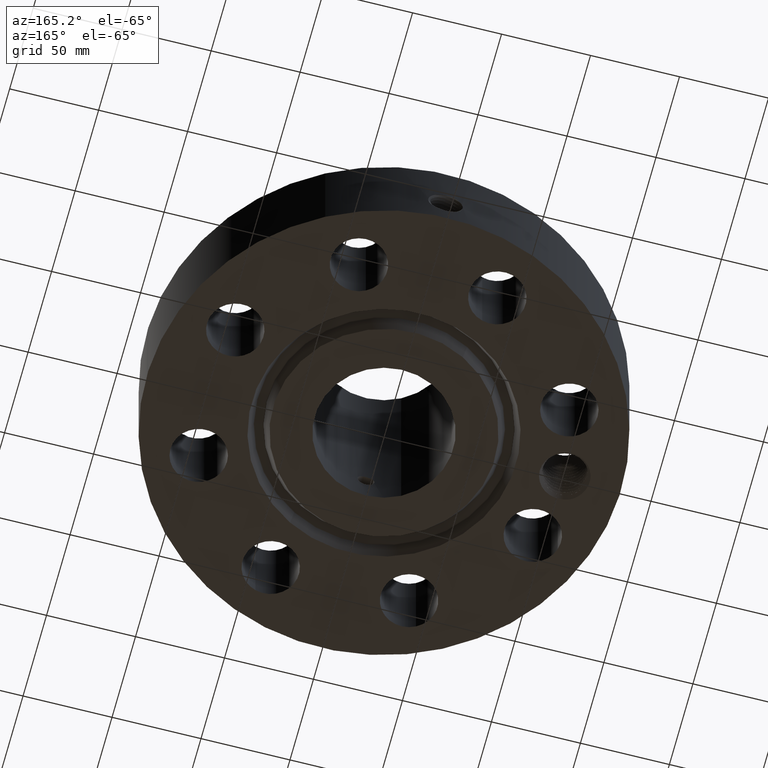
[diagram: clean part render]
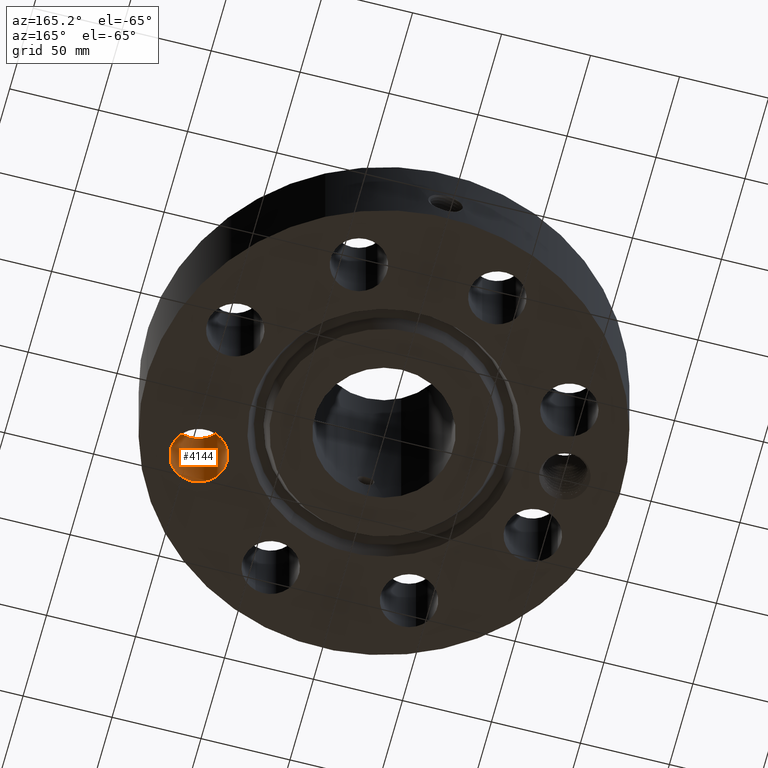
[diagram: same view with one face highlighted and labeled with its STEP entity id]
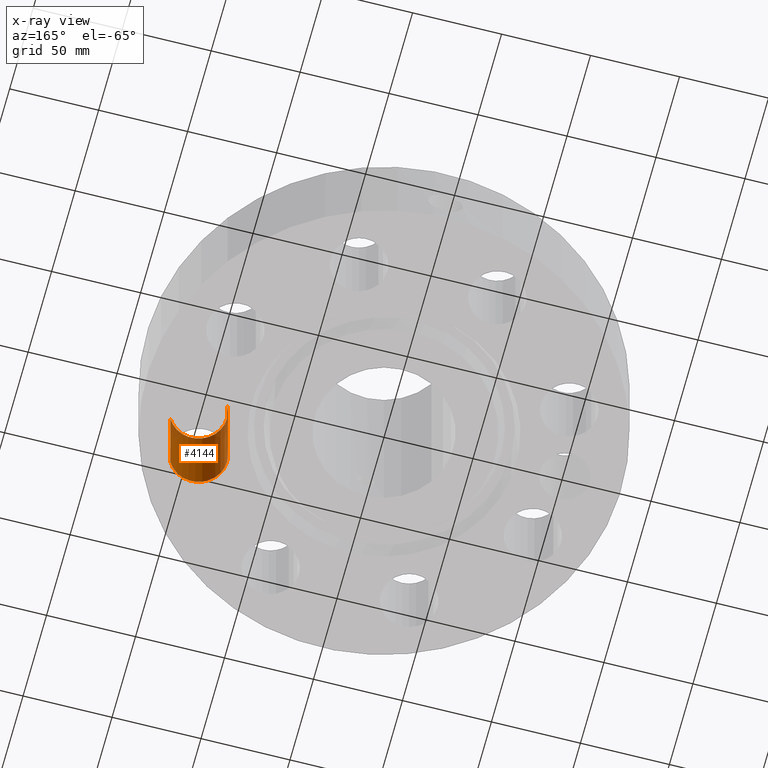
[diagram: x-ray of the same camera — body ghosted, the highlighted face saturated]
A machine part, auxiliary view. The second image highlights one B-rep face of the part: STEP entity #4144.
The next image is the same camera in x-ray: the body ghosted, the highlighted face saturated — about 8% of this face is hidden behind the body in this view.
In plain terms, the highlighted cylindrical surface (edge-blend (fillet) strip) has radius 15.875 mm, axis along (0, -0, -1).
Its self-contained STEP definition (entity closure, byte-faithful):
#2999=AXIS2_PLACEMENT_3D('Circle Axis2P3D',#2997,#2998,$) ;
#4117=AXIS2_PLACEMENT_3D('Cylinder Axis2P3D',#4114,#4115,#4116) ;
#4128=AXIS2_PLACEMENT_3D('Circle Axis2P3D',#4126,#4127,$) ;
#2992=CARTESIAN_POINT('Vertex',(3.14702902888,-1.23109276784,2.19200000001)) ;
#2994=CARTESIAN_POINT('Vertex',(4.24400723124,-1.8303746911,2.19200000001)) ;
#2997=CARTESIAN_POINT('Axis2P3D Location',(3.69551813006,-1.53073372947,2.19200000001)) ;
#4114=CARTESIAN_POINT('Axis2P3D Location',(3.69551813006,-1.53073372947,2.18806299213)) ;
#4119=CARTESIAN_POINT('Line Origine',(4.24400723124,-1.8303746911,1.096)) ;
#4123=CARTESIAN_POINT('Vertex',(4.24400723124,-1.8303746911,0.)) ;
#4126=CARTESIAN_POINT('Axis2P3D Location',(3.69551813006,-1.53073372947,0.)) ;
#4130=CARTESIAN_POINT('Vertex',(3.14702902888,-1.23109276784,0.)) ;
#4133=CARTESIAN_POINT('Line Origine',(3.14702902888,-1.23109276784,1.096)) ;
#2998=DIRECTION('Axis2P3D Direction',(0.,0.,-0.0393700787402)) ;
#4115=DIRECTION('Axis2P3D Direction',(0.,-0.,-0.0393700787402)) ;
#4116=DIRECTION('Axis2P3D XDirection',(-0.0345504945626,0.0188750212049,0.)) ;
#4120=DIRECTION('Vector Direction',(0.,0.,-0.0393700787402)) ;
#4127=DIRECTION('Axis2P3D Direction',(0.,-0.,-0.0393700787402)) ;
#4134=DIRECTION('Vector Direction',(0.,0.,-0.0393700787402)) ;
#4121=VECTOR('Line Direction',#4120,0.0393700787402) ;
#4135=VECTOR('Line Direction',#4134,0.0393700787402) ;
#4139=ORIENTED_EDGE('',*,*,#4125,.F.) ;
#4140=ORIENTED_EDGE('',*,*,#4132,.T.) ;
#4141=ORIENTED_EDGE('',*,*,#4137,.T.) ;
#4142=ORIENTED_EDGE('',*,*,#3001,.F.) ;
#4144=ADVANCED_FACE('PartBody',(#4143),#4118,.F.) ;
#3000=CIRCLE('generated circle',#2999,0.625000000002) ;
#4129=CIRCLE('generated circle',#4128,0.625000000002) ;
#4118=CYLINDRICAL_SURFACE('generated cylinder',#4117,0.625000000002) ;
#3001=EDGE_CURVE('',#2995,#2993,#3000,.T.) ;
#4125=EDGE_CURVE('',#4124,#2995,#4122,.F.) ;
#4132=EDGE_CURVE('',#4124,#4131,#4129,.T.) ;
#4137=EDGE_CURVE('',#4131,#2993,#4136,.F.) ;
#4138=EDGE_LOOP('',(#4139,#4140,#4141,#4142)) ;
#4143=FACE_OUTER_BOUND('',#4138,.T.) ;
#4122=LINE('Line',#4119,#4121) ;
#4136=LINE('Line',#4133,#4135) ;
#2993=VERTEX_POINT('',#2992) ;
#2995=VERTEX_POINT('',#2994) ;
#4124=VERTEX_POINT('',#4123) ;
#4131=VERTEX_POINT('',#4130) ;